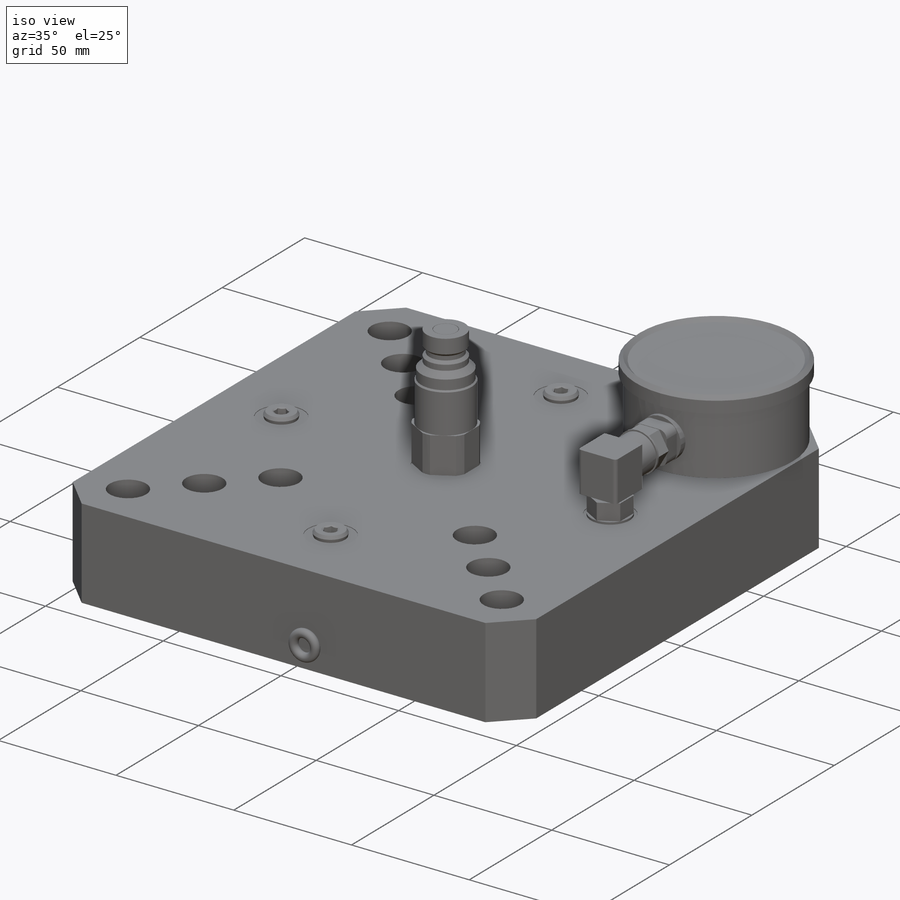
[diagram: iso view]
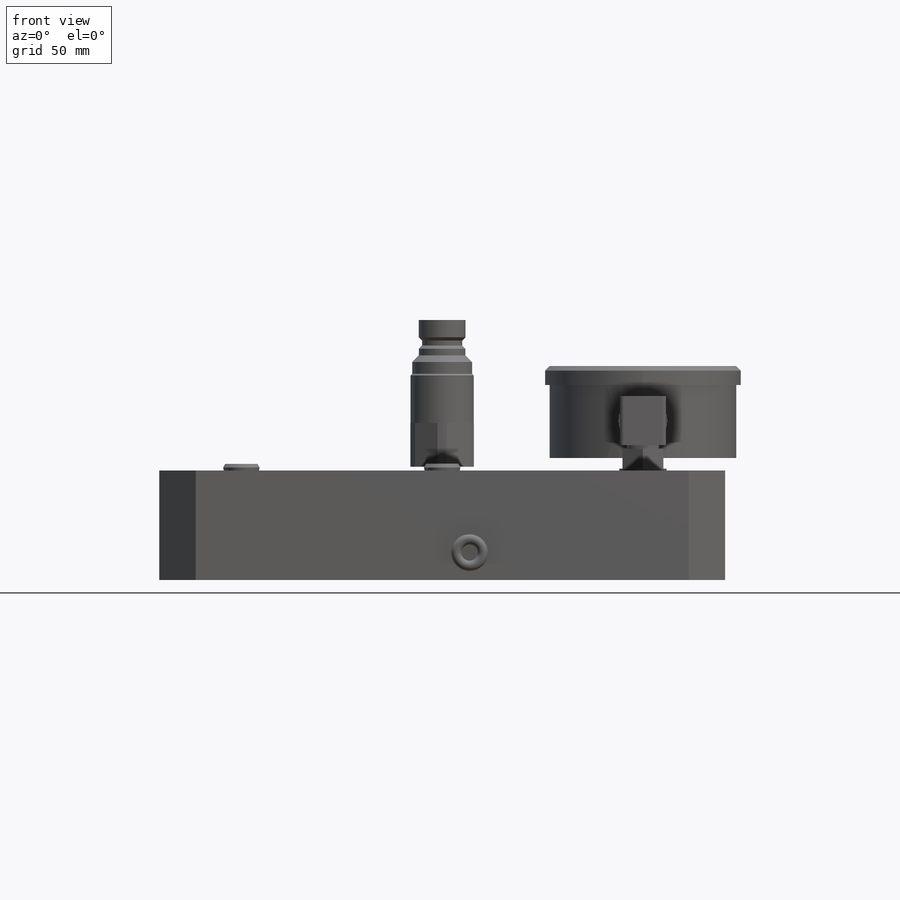
[diagram: front view]
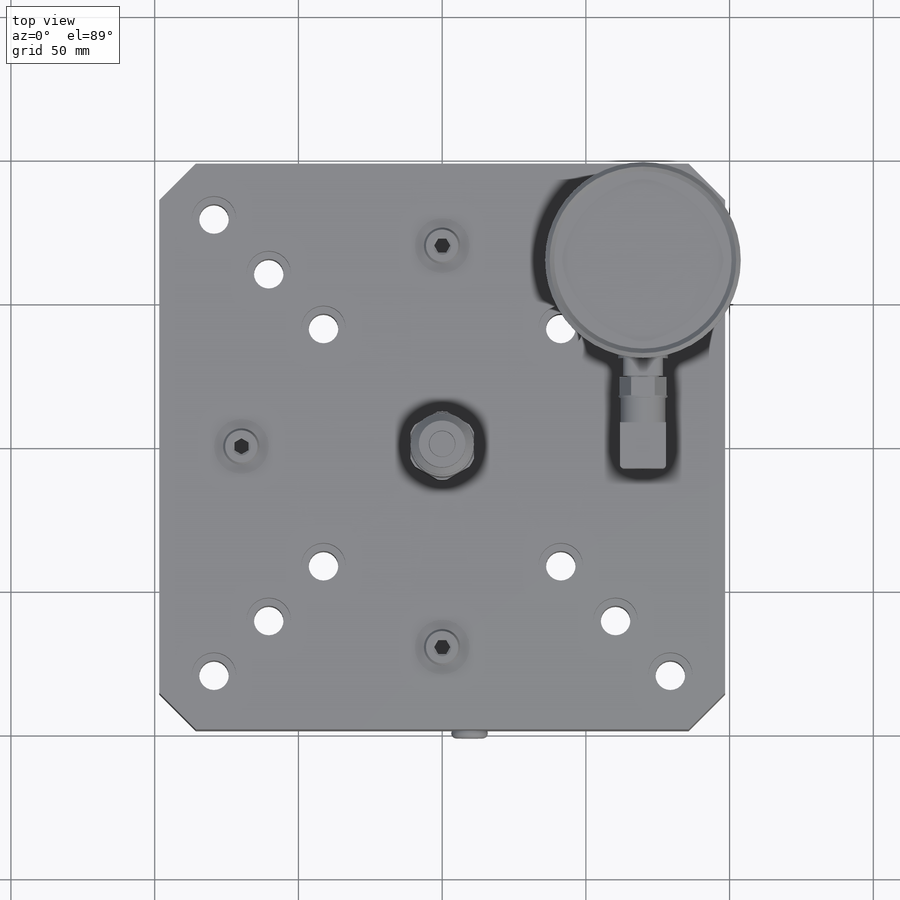
[diagram: top view]
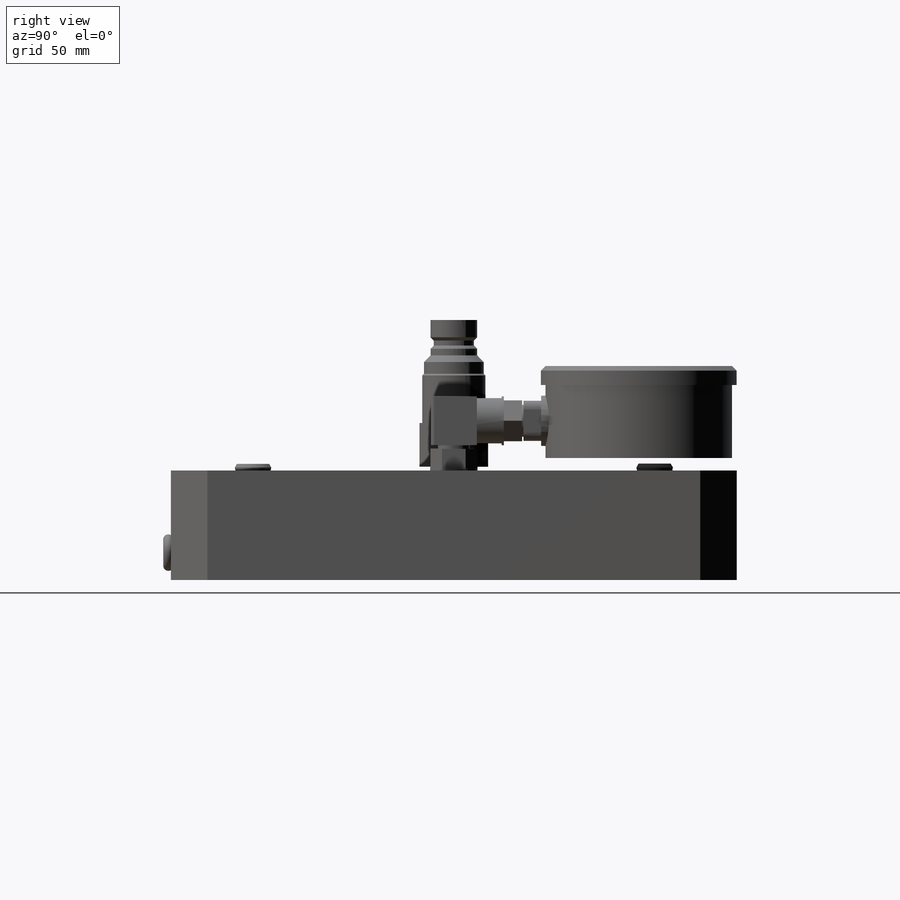
[diagram: right view]
SOLIDWORKS PART (.sldprt)
format: sldprt  version: not decoded by parser v0  size: 3,755,520 bytes
history: native  units: mm
features: move_body x35, sketch x9, hole x4, material x1, extrude x1 + 16 further entries (+76 scaffold rows collapsed; 63 parser-record rows omitted)
feature tree (205):
  scaffold x76  (default folders/planes/origin — collapsed)
  material  "Material <not specified>"
  sketch  "Sketch1"  dims[c1.D1=~190.934474mm c1.D2=~199.380935mm c2.D1=196.85mm c2.D2=196.85mm]
  extrude  "Boss-Extrude1"  Depth=38.1mm
  hole  "CBORE for Socket Head Cap Screw"  Diameter=10.3124mm Depth=38.1mm
  sketch  "Sketch3"  dims[D1=158.75mm D2=120.65mm D3=82.55mm D4=82.55mm D5=120.65mm D6=158.75mm D7=19.05mm D8=19.05mm D9=38.1mm D10=38.1mm D11=57.15mm D12=57.15mm D13=120.65mm]
  sketch  "Sketch2"  dims[hole-wizard template sketch: 42 standard entries collapsed; hole parameters kept: c12.Thru Hole Depth=38.1mm c12.C'Bore Dia.=15.4686mm c12.C'Bore Depth=10.414mm]
  hole  "SAE 4 Spot Face"  Diameter=6.35mm Depth=7.112mm
  sketch  "Sketch5"  dims[D1=98.425mm D2=98.425mm D3=28.575mm D4=168.275mm D5=168.275mm D6=28.575mm]
  sketch  "Sketch4"  dims[hole-wizard template sketch: 29 standard entries collapsed; hole parameters kept: c8.Hole Depth=7.112mm c8.C'Bore Dia.=19.05mm c8.C'Bore Depth=0.254mm c8.D5=~14.816244mm c8.Drill Angle=180.0deg]
  hole  "SAE 6 Spot Face"  Diameter=7.62mm Depth=8.89mm
  sketch  "Sketch7"
  sketch  "Sketch6"  dims[hole-wizard template sketch: 33 standard entries collapsed; hole parameters kept: c8.Drill Angle=180.0deg]
  hole  "SAE 6 Spot Face2"  Diameter=7.62mm Depth=8.89mm
  sketch  "Sketch9"
  sketch  "Sketch8"  dims[hole-wizard template sketch: 33 standard entries collapsed; hole parameters kept: c8.Drill Angle=180.0deg]
  "ilc30871166"
  parser-record x63  (decoder bookkeeping rows leaked as tree rows — omitted from the tree; the rows remain in map.json)
  move_body  "Body-Move/Copy34"
  "Axes2"
  move_body  "Body-Move/Copy4"
  move_body  "Coincident5"
  "Axes3"
  move_body  "Body-Move/Copy6"
  move_body  "Coincident6"
  "Axes4"
  move_body  "Body-Move/Copy8"
  move_body  "Coincident7"
  "Axes6"
  move_body  "Body-Move/Copy10"
  move_body  "Coincident10"
  "Axes7"
  move_body  "Body-Move/Copy12"
  move_body  "Coincident11"
  "Axes8"
  move_body  "Body-Move/Copy14"
  move_body  "Coincident13"
  "Axes9"
  move_body  "Body-Move/Copy16"
  move_body  "Coincident15"
  move_body  "Coincident17"
  "Axes10"
  move_body  "Body-Move/Copy18"
  move_body  "Coincident19"
  move_body  "Coincident20"
  "Axes11"
  move_body  "Body-Move/Copy20"
  move_body  "Coincident22"
  move_body  "Coincident23"
  "Axes12"
  move_body  "Body-Move/Copy22"
  move_body  "Coincident25"
  move_body  "Coincident26"
  "Axes13"
  move_body  "Body-Move/Copy24"
  move_body  "Coincident27"
  "Axes14"
  move_body  "Body-Move/Copy26"
  move_body  "Coincident28"
  "Axes15"
  move_body  "Body-Move/Copy28"
  move_body  "Coincident30"
  "Axes16"
  move_body  "Body-Move/Copy30"
  move_body  "Coincident31"
  "Axes17"
  move_body  "Body-Move/Copy32"
  move_body  "Coincident32"
decode coverage: 12 of 49 modeling features carry decoded parameters; 16 rows unclassified (native names shown)
note: ~ marks probable driven/reference dimensions
summary: Diameter pulled from absorbed wizard sketch
note: suppression state not decoded; provenance and decode notes live in map.json
